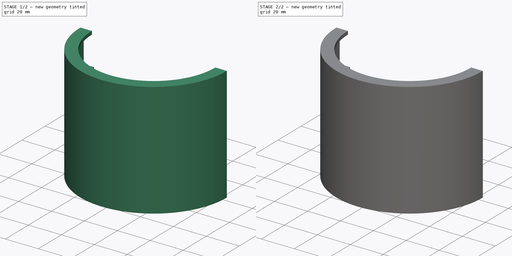
[diagram: build sequence overview — one tinted view per stage of 2, left to right]
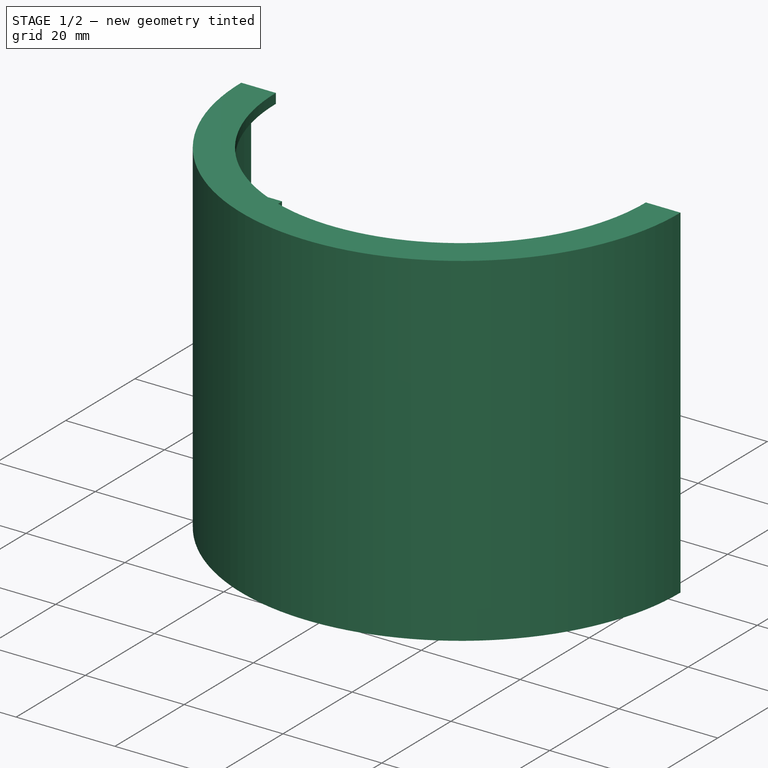
[diagram: stage 1 of 2 — iso view after this stage's code; geometry added in this stage tinted green]
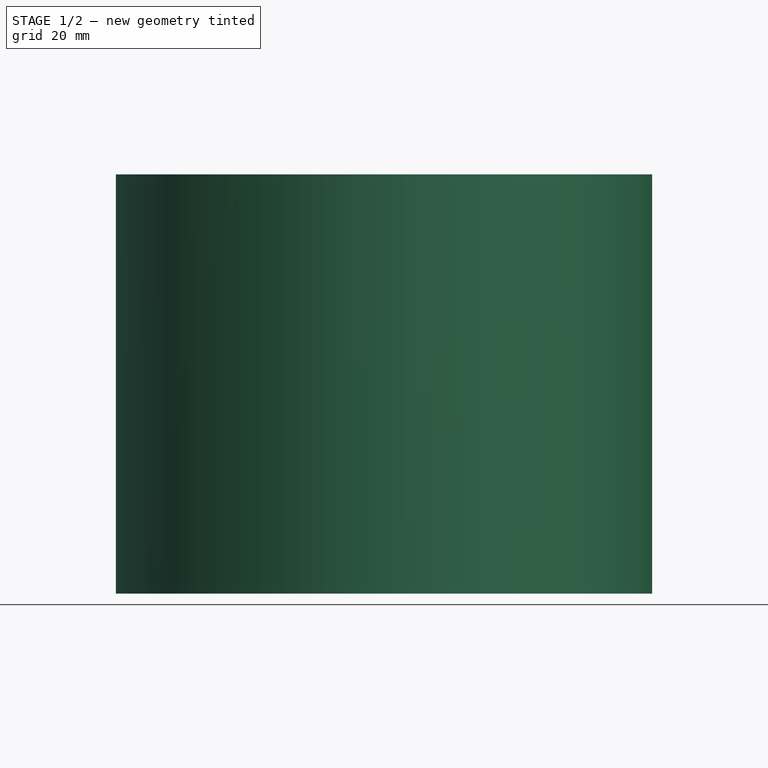
[diagram: stage 1 of 2 — front view after this stage's code; geometry added in this stage tinted green]
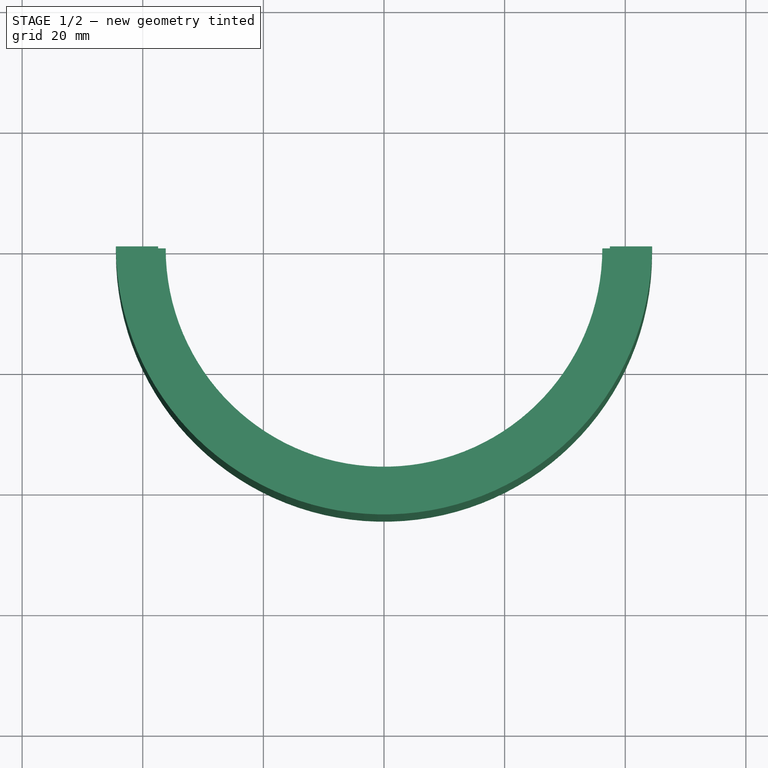
[diagram: stage 1 of 2 — top view after this stage's code; geometry added in this stage tinted green]
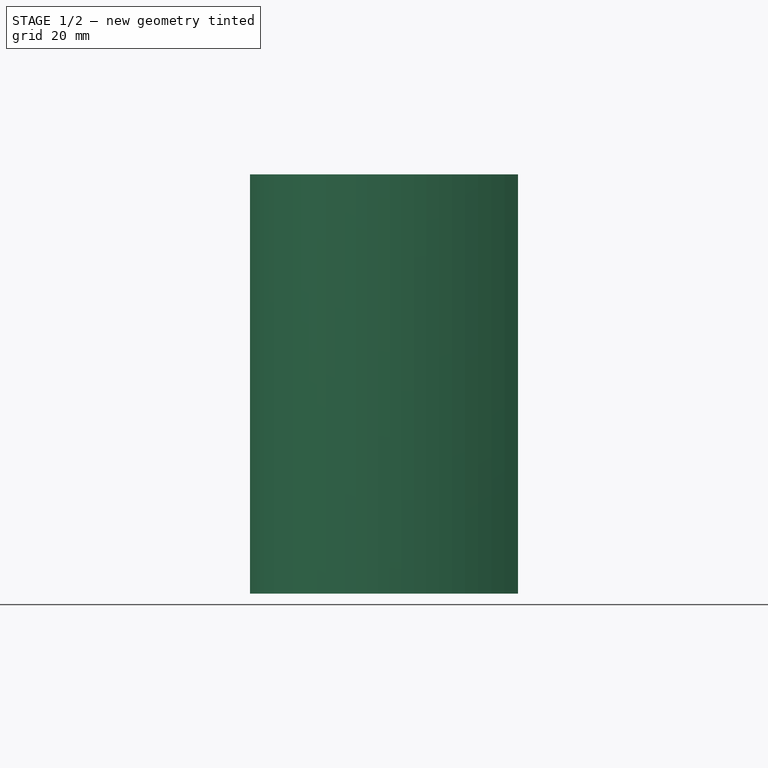
[diagram: stage 1 of 2 — right view after this stage's code; geometry added in this stage tinted green]
FCSTD DOCUMENT  (FreeCAD 1.0R38641 +678 (Git))
Label: pipe_injection
License: All rights reserved
LicenseURL: https://en.wikipedia.org/wiki/All_rights_reserved
objects: Sketcher::SketchObject×4, PartDesign::Plane×3, PartDesign::Pad×3, PartDesign::Revolution×1, PartDesign::Body×1
note: 24 computed .brp shape members not serialized (recipe doc carries the construction recipe); baked Part::Feature solids carry a one-line shape summary decoded from their .brp

FEATURE [Sketcher::SketchObject] Sketch
  ArcFitTolerance = 1e-06
  AttachmentSupport = -> [XZ_Plane]
  FullyConstrained = true
  MakeInternals = false
  MapMode = 5
  Placement = pos=(0,0,0) rot=(1,0,0;1.5708rad)
  sketch-geometry (24):
    g0: LineSegment StartX=37.45 StartY=69.5 StartZ=0 EndX=37.45 EndY=67.5 EndZ=0
    g1: LineSegment StartX=37.45 StartY=67.5 StartZ=0 EndX=42.45 EndY=67.5 EndZ=0
    g2: LineSegment StartX=42.45 StartY=67.5 StartZ=0 EndX=42.45 EndY=50 EndZ=0
    g3: LineSegment StartX=42.45 StartY=38.5 StartZ=0 EndX=42.45 EndY=21 EndZ=0
    g4: LineSegment StartX=42.45 StartY=9.5 StartZ=0 EndX=42.45 EndY=2 EndZ=0
    g5: LineSegment StartX=42.45 StartY=2 StartZ=0 EndX=37.45 EndY=2 EndZ=0
    g6: LineSegment StartX=37.45 StartY=2 StartZ=0 EndX=37.45 EndY=0 EndZ=0
    g7: LineSegment StartX=37.45 StartY=0 StartZ=0 EndX=44.45 EndY=0 EndZ=0
    g8: LineSegment StartX=44.45 StartY=0 StartZ=0 EndX=44.45 EndY=69.5 EndZ=0
    g9: LineSegment StartX=44.45 StartY=69.5 StartZ=0 EndX=37.45 EndY=69.5 EndZ=0
    g10: LineSegment StartX=36.2 StartY=9.5 StartZ=0 EndX=36.2 EndY=11.5 EndZ=0
    g11: LineSegment StartX=36.2 StartY=11.5 StartZ=0 EndX=41.2 EndY=11.5 EndZ=0
    g12: LineSegment StartX=41.2 StartY=11.5 StartZ=0 EndX=41.2 EndY=19 EndZ=0
    g13: LineSegment StartX=36.2 StartY=38.5 StartZ=0 EndX=36.2 EndY=40.5 EndZ=0
    g14: LineSegment StartX=36.2 StartY=40.5 StartZ=0 EndX=41.2 EndY=40.5 EndZ=0
    g15: LineSegment StartX=41.2 StartY=40.5 StartZ=0 EndX=41.2 EndY=48 EndZ=0
    g16: LineSegment StartX=36.2 StartY=9.5 StartZ=0 EndX=42.45 EndY=9.5 EndZ=0
    g17: LineSegment StartX=42.45 StartY=38.5 StartZ=0 EndX=36.2 EndY=38.5 EndZ=0
    g18: LineSegment StartX=41.2 StartY=48 StartZ=0 EndX=36.2 EndY=48 EndZ=0
    g19: LineSegment StartX=36.2 StartY=48 StartZ=0 EndX=36.2 EndY=50 EndZ=0
    g20: LineSegment StartX=36.2 StartY=50 StartZ=0 EndX=42.45 EndY=50 EndZ=0
    g21: LineSegment StartX=41.2 StartY=19 StartZ=0 EndX=36.2 EndY=19 EndZ=0
    g22: LineSegment StartX=36.2 StartY=19 StartZ=0 EndX=36.2 EndY=21 EndZ=0
    g23: LineSegment StartX=36.2 StartY=21 StartZ=0 EndX=42.45 EndY=21 EndZ=0
  constraints (72):
    c: Vertical(g0)
    c: Coincident(g0,g1)
    c: Horizontal(g1)
    c: Coincident(g1,g2)
    c: Vertical(g3)
    c: Vertical(g4)
    c: Coincident(g4,g5)
    c: Coincident(g5,g6)
    c: Coincident(g6,g7)
    c: Coincident(g7,g8)
    c: Vertical(g8)
    c: Coincident(g8,g9)
    c: Coincident(g9,g0)
    c: PointOnObject(g6,g-1)
    c: Horizontal(g7)
    c: Horizontal(g5)
    c: Vertical(g6)
    c: Horizontal(g9)
    c: Vertical(g2)
    c: Equal(g3,g2)
    c: Coincident(g10,g11)
    c: Horizontal(g11)
    c: Coincident(g11,g12)
    c: Vertical(g12)
    c: Coincident(g13,g14)
    c: Coincident(g14,g15)
    c: Vertical(g15)
    c: Vertical(g13)
    c: Horizontal(g14)
    c: Vertical(g10)
    c: Distance(g4,g4) = 7.5
    c: Distance(g3,g3) = 17.5
    c: Equal(g12,g15)
    c: Equal(g6,g0)
    c: Distance(g0,g0) = 2
    c: Coincident(g16,g10)
    c: Coincident(g16,g4)
    c: Horizontal(g16)
    c: Coincident(g17,g3)
    c: Coincident(g17,g13)
    c: Horizontal(g17)
    c: Equal(g17,g16)
    c: Distance(g13,g13) = 2
    c: Vertical(g4,g3)
    c: Distance(g8,g4) = 2
    c: Distance(g1,g1) = 5
    c: Distance(g-2,g4) = 42.45
    c: Equal(g1,g5)
    c: Distance(g15,g15) = 7.5
    c: Coincident(g18,g15)
    c: Horizontal(g18)
    c: Coincident(g18,g19)
    c: Coincident(g19,g20)
    c: Coincident(g12,g21)
    c: Horizontal(g21)
    c: Coincident(g21,g22)
    c: Coincident(g22,g23)
    c: Horizontal(g20)
    c: Horizontal(g23)
    c: Coincident(g20,g2)
    c: Coincident(g23,g3)
    c: Vertical(g14,g12)
    c: Equal(g19,g13)
    c: Equal(g13,g22)
    c: Equal(g22,g10)
    c: Vertical(g10,g21)
    c: Vertical(g21,g22)
    c: Vertical(g13,g18)
    c: Vertical(g18,g19)
    c: Distance(g12,g-2) = 41.2
    c: Distance(g18,g18) = 5
    c: Vertical(g2,g3)
FEATURE [PartDesign::Revolution] Revolution
  Angle = 180
  Angle2 = 60
  Axis = (0,2e-16,1)
  Base = (0,0,0)
  Placement = pos=(0,0,0) rot=(1,0,0;1.5708rad)
  Profile = -> Sketch
  ReferenceAxis = -> Sketch [V_Axis]
  Refine = true
  Reversed = true
  Suppressed = false
  Type = 0
FEATURE [PartDesign::Plane] DatumPlane
  AttachmentOffset = pos=(0,0,2) rot=(0,0,1;0rad)
  AttachmentSupport = -> [XY_Plane]
  Length = 60
  MapMode = 5
  Placement = pos=(0,0,2) rot=(0,0,1;0rad)
  ResizeMode = 0
  Width = 60
FEATURE [Sketcher::SketchObject] Sketch001
  ArcFitTolerance = 1e-06
  AttachmentSupport = -> [DatumPlane]
  FullyConstrained = true
  MakeInternals = false
  MapMode = 5
  Placement = pos=(0,0,2) rot=(0,0,1;0rad)
  sketch-geometry (6):
    g0: ArcOfCircle CenterX=0 CenterY=0 CenterZ=0 NormalX=0 NormalY=0 NormalZ=1 AngleXU=0 Radius=42.45 StartAngle=4.67748 EndAngle=4.7473
    g1: ArcOfCircle CenterX=0 CenterY=0 CenterZ=0 NormalX=0 NormalY=0 NormalZ=1 AngleXU=0 Radius=39.45 StartAngle=4.67748 EndAngle=4.7473
    g2: LineSegment StartX=-1.37679 StartY=-39.426 StartZ=0 EndX=-1.48148 EndY=-42.4241 EndZ=0
    g3: LineSegment StartX=1.48148 StartY=-42.4241 StartZ=0 EndX=1.37679 EndY=-39.426 EndZ=0
    g4: LineSegment [constr] StartX=-1.48148 StartY=-42.4241 StartZ=0 EndX=0 EndY=0 EndZ=0
    g5: LineSegment [constr] StartX=0 StartY=0 StartZ=0 EndX=1.48148 EndY=-42.4241 EndZ=0
  constraints (16):
    c: Coincident(g1,g0)
    c: Coincident(g0,g-1)
    c: Coincident(g2,g1)
    c: Coincident(g2,g0)
    c: Coincident(g3,g0)
    c: Coincident(g3,g1)
    c: Coincident(g4,g0)
    c: Coincident(g4,g0)
    c: Coincident(g5,g0)
    c: Coincident(g5,g0)
    c: Parallel(g2,g4)
    c: Parallel(g3,g5)
    c: Angle(g4,g-2) = 0.0349066
    c: Angle(g-2,g5) = 0.0349066
    c: Distance(g5,g5) = 42.45
    c: Distance(g2,g2) = 3
FEATURE [PartDesign::Pad] Pad
  BaseFeature = -> Revolution
  Direction = (0,0,1)
  Length = 7.5
  Length2 = 10
  Placement = pos=(0,0,0) rot=(1,0,0;1.5708rad)
  Profile = -> Sketch001
  ReferenceAxis = -> Sketch001 [N_Axis]
  Refine = true
  Suppressed = false
  Type = 0
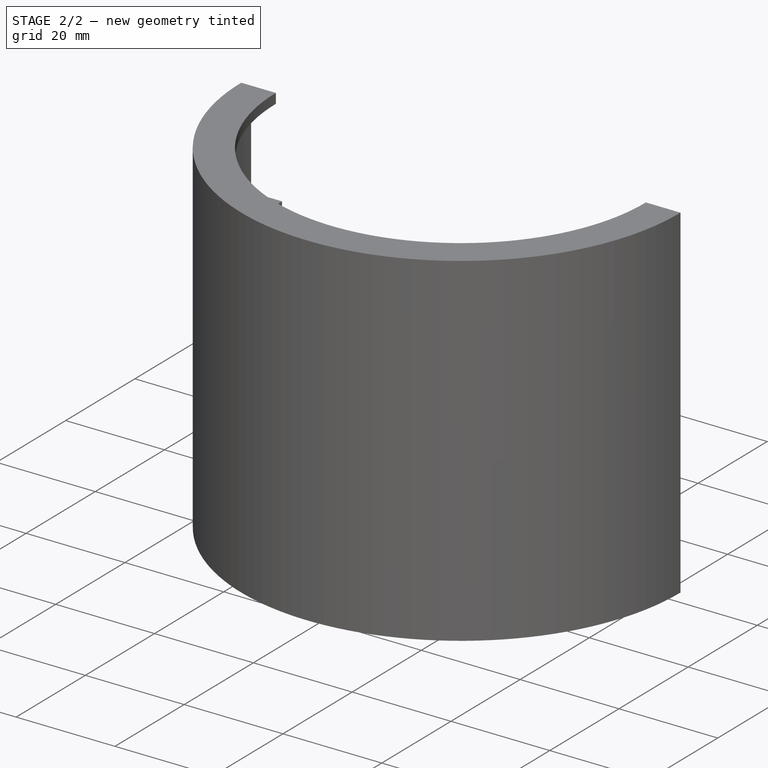
[diagram: stage 2 of 2 — iso view after this stage's code; geometry added in this stage tinted green]
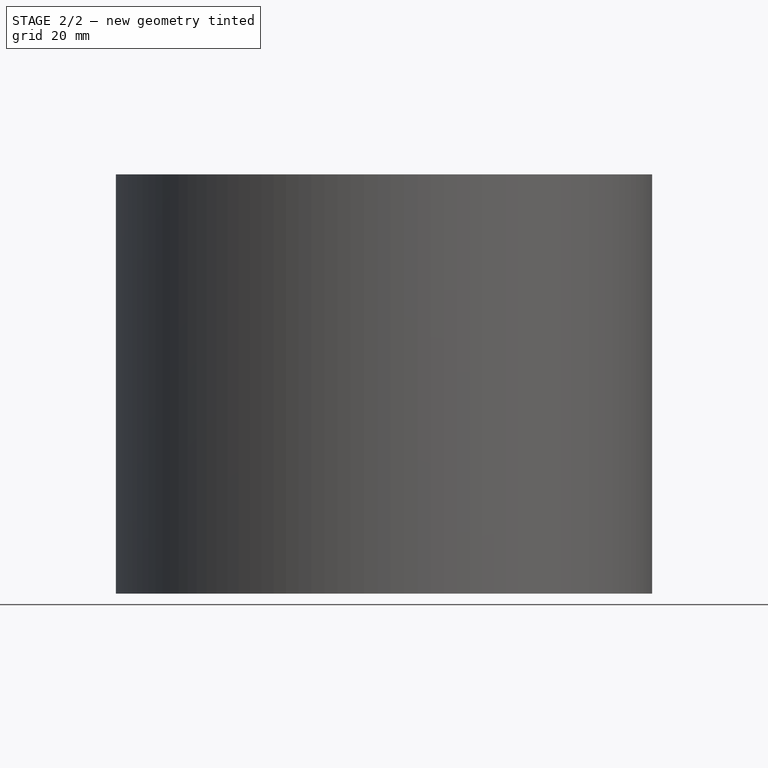
[diagram: stage 2 of 2 — front view after this stage's code; geometry added in this stage tinted green]
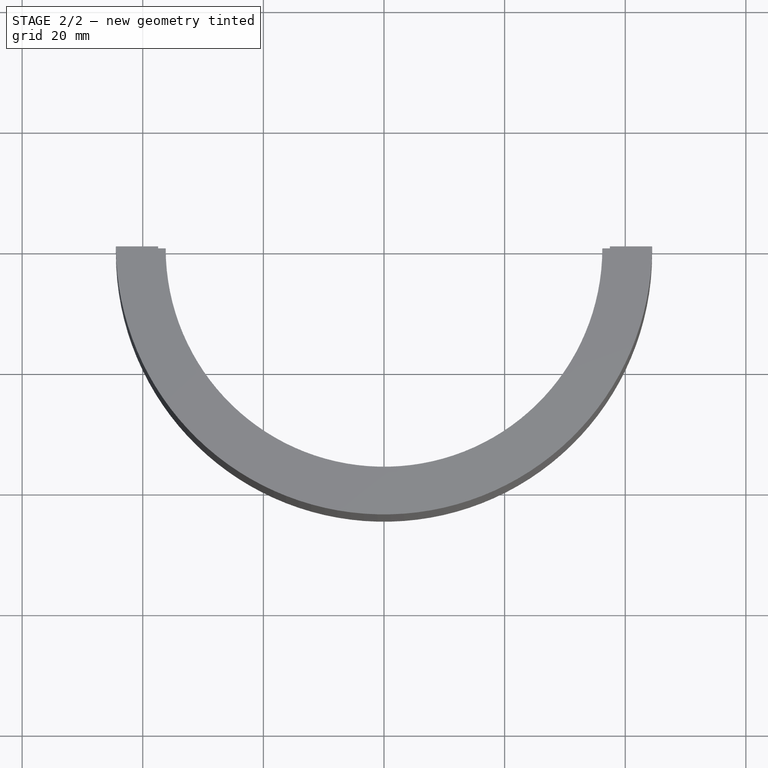
[diagram: stage 2 of 2 — top view after this stage's code; geometry added in this stage tinted green]
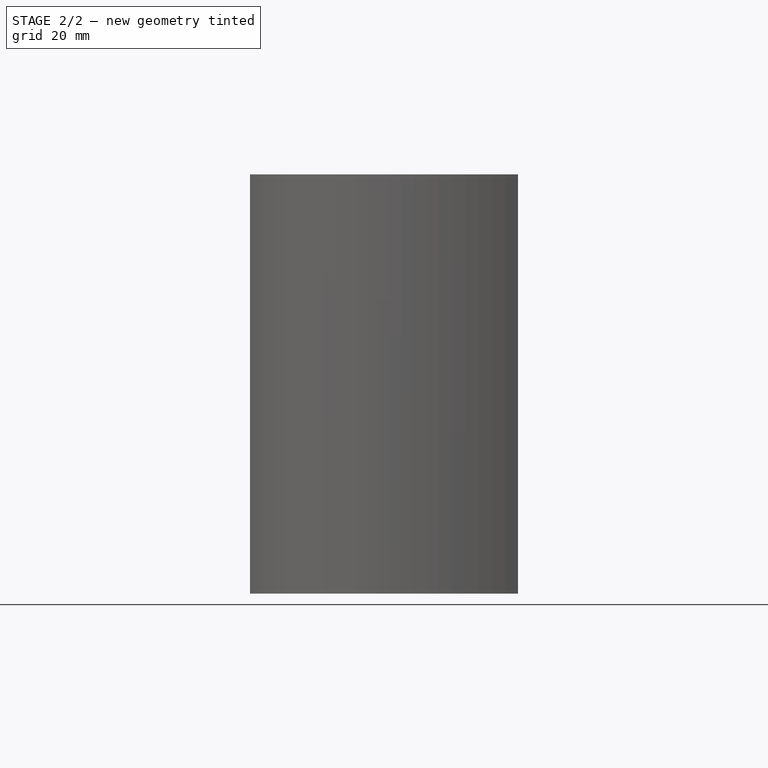
[diagram: stage 2 of 2 — right view after this stage's code; geometry added in this stage tinted green]
FEATURE [PartDesign::Plane] DatumPlane001
  AttachmentOffset = pos=(0,0,21) rot=(0,0,1;0rad)
  AttachmentSupport = -> [XY_Plane]
  Length = 60
  MapMode = 5
  Placement = pos=(0,0,21) rot=(0,0,1;0rad)
  ResizeMode = 0
  Width = 60
FEATURE [Sketcher::SketchObject] Sketch002
  ArcFitTolerance = 1e-06
  AttachmentSupport = -> [DatumPlane001]
  FullyConstrained = true
  MakeInternals = false
  MapMode = 5
  Placement = pos=(0,0,21) rot=(0,0,1;0rad)
  sketch-geometry (6):
    g0: ArcOfCircle CenterX=0 CenterY=0 CenterZ=0 NormalX=0 NormalY=0 NormalZ=1 AngleXU=0 Radius=42.45 StartAngle=4.67748 EndAngle=4.7473
    g1: ArcOfCircle CenterX=0 CenterY=0 CenterZ=0 NormalX=0 NormalY=0 NormalZ=1 AngleXU=0 Radius=39.45 StartAngle=4.67748 EndAngle=4.7473
    g2: LineSegment StartX=-1.3768 StartY=-39.426 StartZ=0 EndX=-1.4815 EndY=-42.4241 EndZ=0
    g3: LineSegment StartX=1.4815 StartY=-42.4241 StartZ=0 EndX=1.3768 EndY=-39.426 EndZ=0
    g4: LineSegment [constr] StartX=-1.4815 StartY=-42.4241 StartZ=0 EndX=0 EndY=0 EndZ=0
    g5: LineSegment [constr] StartX=0 StartY=0 StartZ=0 EndX=1.4815 EndY=-42.4241 EndZ=0
  constraints (16):
    c: Coincident(g1,g0)
    c: Coincident(g0,g-1)
    c: Coincident(g2,g1)
    c: Coincident(g2,g0)
    c: Coincident(g3,g0)
    c: Coincident(g3,g1)
    c: Coincident(g4,g0)
    c: Coincident(g4,g0)
    c: Coincident(g5,g0)
    c: Coincident(g5,g0)
    c: Parallel(g2,g4)
    c: Parallel(g3,g5)
    c: Angle(g4,g-2) = 0.034907
    c: Angle(g-2,g5) = 0.034907
    c: Distance(g5,g5) = 42.45
    c: Distance(g2,g2) = 3
FEATURE [PartDesign::Pad] Pad001
  BaseFeature = -> Pad
  Direction = (0,0,1)
  Length = 17.5
  Length2 = 10
  Placement = pos=(0,0,0) rot=(1,0,0;1.5708rad)
  Profile = -> Sketch002
  ReferenceAxis = -> Sketch002 [N_Axis]
  Refine = true
  Suppressed = false
  Type = 0
FEATURE [PartDesign::Plane] DatumPlane002
  AttachmentOffset = pos=(0,0,50) rot=(0,0,1;0rad)
  AttachmentSupport = -> [XY_Plane]
  Length = 60
  MapMode = 5
  Placement = pos=(0,0,50) rot=(0,0,1;0rad)
  ResizeMode = 0
  Width = 60
FEATURE [Sketcher::SketchObject] Sketch003
  ArcFitTolerance = 1e-06
  AttachmentSupport = -> [DatumPlane002]
  FullyConstrained = true
  MakeInternals = false
  MapMode = 5
  Placement = pos=(0,0,50) rot=(0,0,1;0rad)
  sketch-geometry (6):
    g0: ArcOfCircle CenterX=-2e-16 CenterY=0 CenterZ=0 NormalX=0 NormalY=0 NormalZ=1 AngleXU=0 Radius=42.45 StartAngle=4.67748 EndAngle=4.7473
    g1: ArcOfCircle CenterX=-2e-16 CenterY=0 CenterZ=0 NormalX=0 NormalY=0 NormalZ=1 AngleXU=0 Radius=39.45 StartAngle=4.67748 EndAngle=4.7473
    g2: LineSegment StartX=-1.3768 StartY=-39.426 StartZ=0 EndX=-1.4815 EndY=-42.4241 EndZ=0
    g3: LineSegment StartX=1.4815 StartY=-42.4241 StartZ=0 EndX=1.3768 EndY=-39.426 EndZ=0
    g4: LineSegment [constr] StartX=-1.4815 StartY=-42.4241 StartZ=0 EndX=-2e-16 EndY=0 EndZ=0
    g5: LineSegment [constr] StartX=-2e-16 StartY=0 StartZ=0 EndX=1.4815 EndY=-42.4241 EndZ=0
  constraints (16):
    c: Coincident(g1,g0)
    c: Coincident(g0,g-1)
    c: Coincident(g2,g1)
    c: Coincident(g2,g0)
    c: Coincident(g3,g0)
    c: Coincident(g3,g1)
    c: Coincident(g4,g0)
    c: Coincident(g4,g0)
    c: Coincident(g5,g0)
    c: Coincident(g5,g0)
    c: Parallel(g2,g4)
    c: Parallel(g3,g5)
    c: Angle(g4,g-2) = 0.034907
    c: Angle(g-2,g5) = 0.034907
    c: Distance(g5,g5) = 42.45
    c: Distance(g2,g2) = 3
FEATURE [PartDesign::Pad] Pad002
  BaseFeature = -> Pad001
  Direction = (0,0,1)
  Length = 17.5
  Length2 = 10
  Placement = pos=(0,0,0) rot=(1,0,0;1.5708rad)
  Profile = -> Sketch003
  ReferenceAxis = -> Sketch003 [N_Axis]
  Refine = true
  Suppressed = false
  Type = 0
FEATURE [PartDesign::Body] Body
  AllowCompound = false
  Group = -> [Sketch,Revolution,DatumPlane,Sketch001,Pad,DatumPlane001,Sketch002,Pad001,DatumPlane002,Sketch003,Pad002]
  Origin = -> Origin
  Tip = -> Pad002
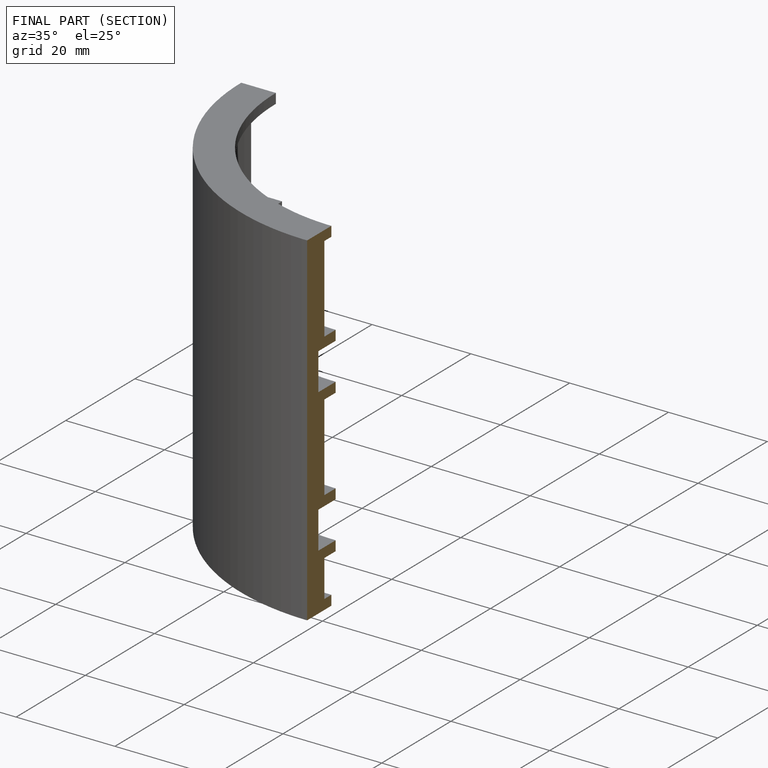
[diagram: finished part — half-section view (interior)]
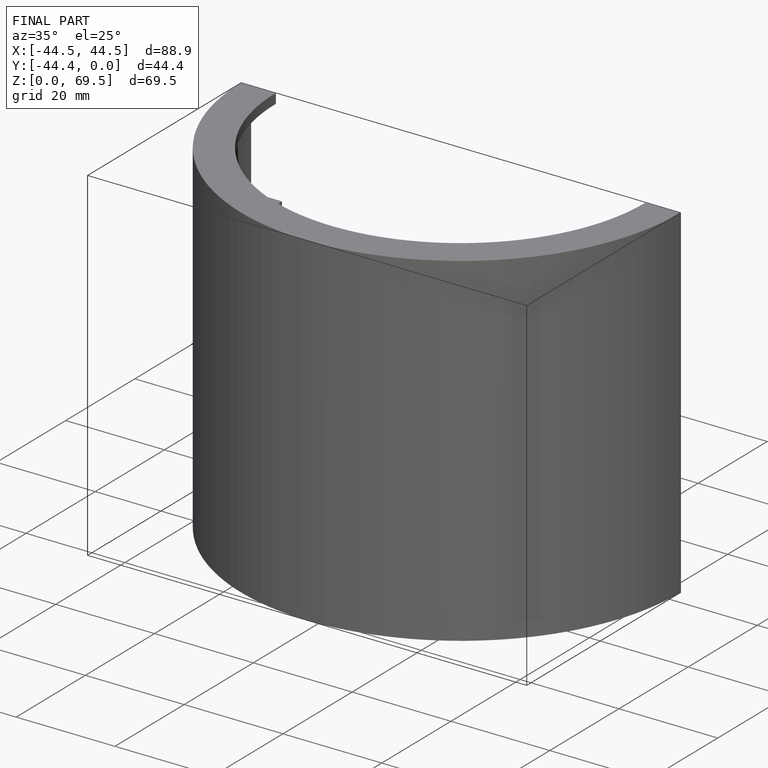
[diagram: finished part — iso view with bounding-box wireframe]
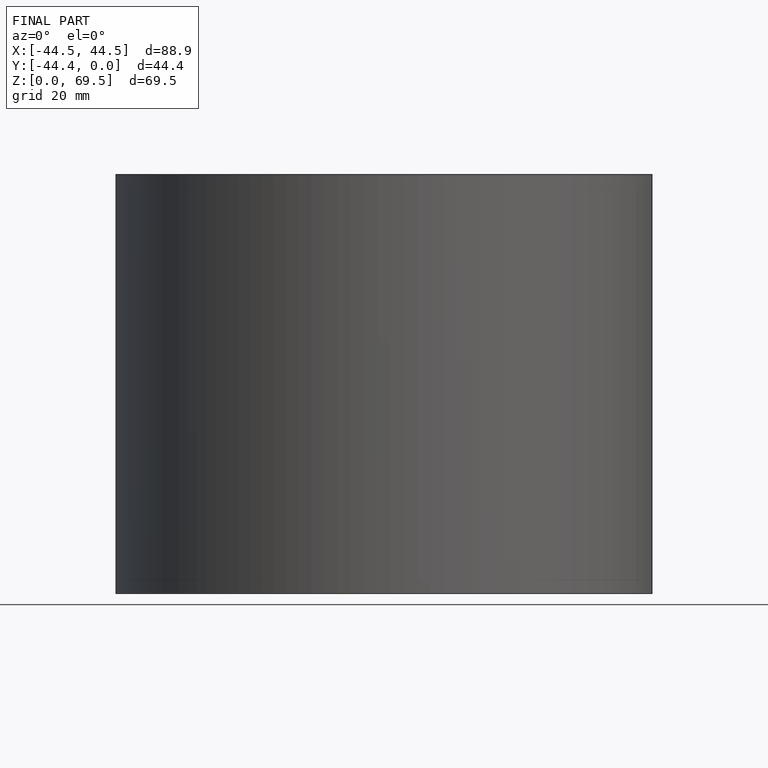
[diagram: finished part — front view with bounding-box wireframe]
